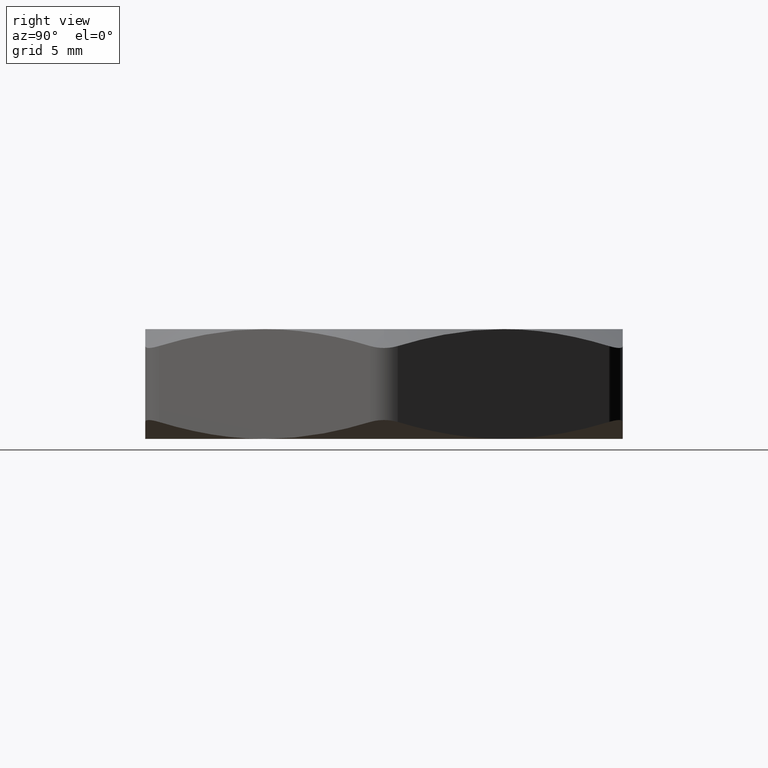
[diagram: clean part render]
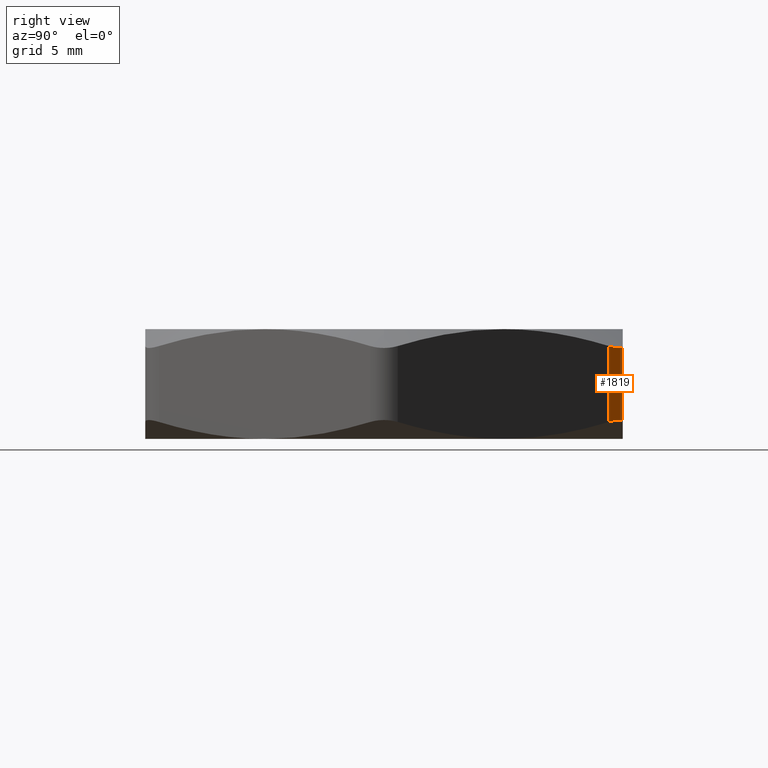
[diagram: same view with one face highlighted and labeled with its STEP entity id]
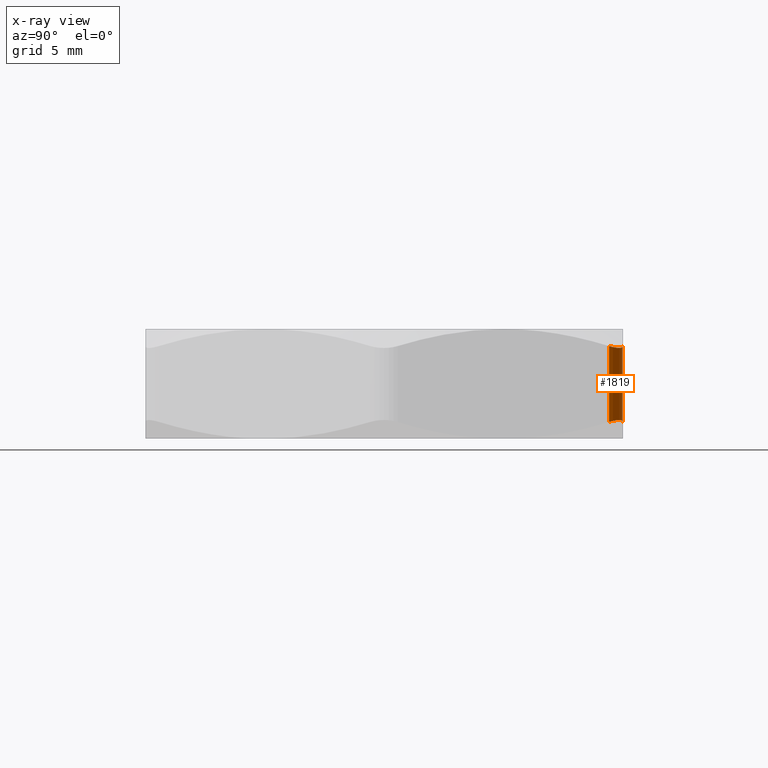
[diagram: x-ray of the same camera — body ghosted, the highlighted face saturated]
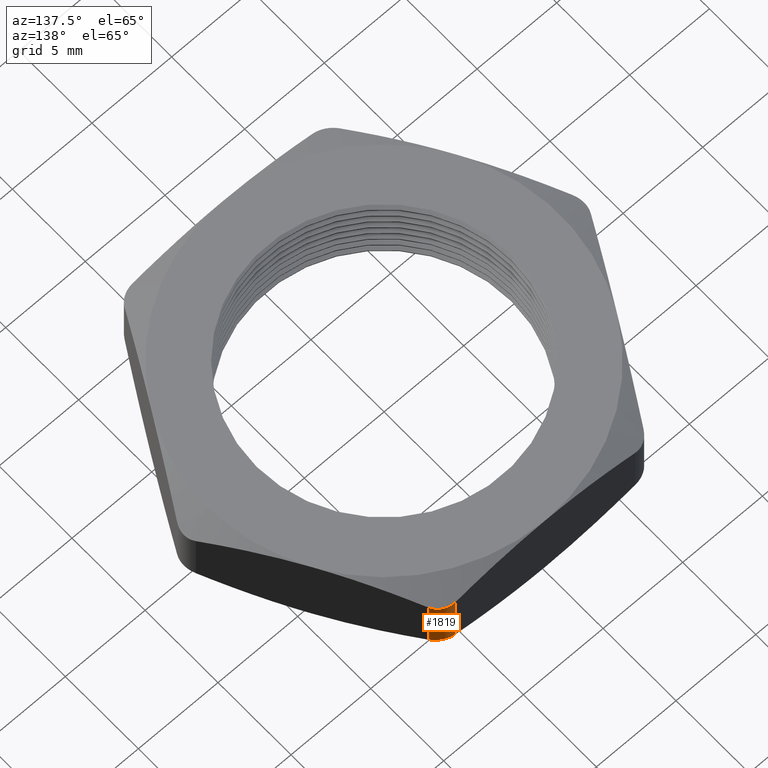
[diagram: same view with one face highlighted and labeled with its STEP entity id]
A machine part, right view. The second image highlights one B-rep face of the part: STEP entity #1819.
The next image is the same camera in x-ray: the body ghosted, the highlighted face saturated — about 0% of this face is hidden behind the body in this view.
A second angle (auxiliary view) of the same face is appended — the face is thin or edge-on in the first view.
In plain terms, the highlighted cylindrical surface (edge-blend (fillet) strip) has radius 1.27 mm, axis along (0, 0, -1).
Its self-contained STEP definition (entity closure, byte-faithful):
#59 = CARTESIAN_POINT ( 'NONE',  ( 0.2655811238272280900, 0.4100000000000000900, 0.1691111204119870300 ) ) ;
#60 = DIRECTION ( 'NONE',  ( 0.0000000000000000000, 0.0000000000000000000, 1.000000000000000000 ) ) ;
#61 = VECTOR ( 'NONE', #60, 39.37007874015748100 ) ;
#62 = CARTESIAN_POINT ( 'NONE',  ( 0.2655811238272280900, 0.4100000000000000900, 0.2000000000000000100 ) ) ;
#63 = LINE ( 'NONE', #62, #61 ) ;
#77 = B_SPLINE_CURVE_WITH_KNOTS ( 'NONE', 3,
 ( #107, #94, #93, #92, #91, #139, #138, #137, #136, #135 ),
 .UNSPECIFIED., .F., .F.,
 ( 4, 2, 2, 2, 4 ),
 ( 1.939479807224432100E-018, 0.0003345381006702025400, 0.0006690762013404031200, 0.001003614302010603700, 0.001338152402680804300 ),
 .UNSPECIFIED. ) ;
#91 = CARTESIAN_POINT ( 'NONE',  ( 0.2511235597171417900, 0.4260777074943110100, 0.1656151636324163500 ) ) ;
#92 = CARTESIAN_POINT ( 'NONE',  ( 0.2546428228077096700, 0.4233644132453336900, 0.1659209830829221900 ) ) ;
#93 = CARTESIAN_POINT ( 'NONE',  ( 0.2608209857074347800, 0.4171523112068913900, 0.1671136166764754500 ) ) ;
#94 = CARTESIAN_POINT ( 'NONE',  ( 0.2634293512249381600, 0.4137269794735008400, 0.1679805430371039700 ) ) ;
#107 = CARTESIAN_POINT ( 'NONE',  ( 0.2655811238272280900, 0.4100000000000000900, 0.1691111204119870300 ) ) ;
#135 = CARTESIAN_POINT ( 'NONE',  ( 0.2222798536380062900, 0.4350000000000000500, 0.1691111204119868900 ) ) ;
#136 = CARTESIAN_POINT ( 'NONE',  ( 0.2265847453933615100, 0.4350000000000002800, 0.1679801892869355300 ) ) ;
#137 = CARTESIAN_POINT ( 'NONE',  ( 0.2309501607717504000, 0.4344345798341482400, 0.1670972121791100800 ) ) ;
#138 = CARTESIAN_POINT ( 'NONE',  ( 0.2393632267801656100, 0.4321922691895396800, 0.1659182179950457500 ) ) ;
#139 = CARTESIAN_POINT ( 'NONE',  ( 0.2435107721109948100, 0.4304817054887020700, 0.1656112295872508000 ) ) ;
#292 = DIRECTION ( 'NONE',  ( -1.000000000000000000, 0.0000000000000000000, 0.0000000000000000000 ) ) ;
#293 = DIRECTION ( 'NONE',  ( 0.0000000000000000000, 0.0000000000000000000, -1.000000000000000000 ) ) ;
#294 = CARTESIAN_POINT ( 'NONE',  ( 0.2222798536380062600, 0.3850000000000000600, 0.2000000000000000100 ) ) ;
#295 = AXIS2_PLACEMENT_3D ( 'NONE', #294, #293, #292 ) ;
#297 = CYLINDRICAL_SURFACE ( 'NONE', #295, 0.05000000000000001000 ) ;
#300 = FACE_OUTER_BOUND ( 'NONE', #1820, .T. ) ;
#301 = CARTESIAN_POINT ( 'NONE',  ( 0.2655811238272201000, 0.4100000000000139100, 0.03088887958801707400 ) ) ;
#302 = CARTESIAN_POINT ( 'NONE',  ( 0.2634286779495386700, 0.4137281456206972100, 0.03201981071306909300 ) ) ;
#303 = CARTESIAN_POINT ( 'NONE',  ( 0.2607563020329075600, 0.4172259961535204600, 0.03290278782089232200 ) ) ;
#304 = CARTESIAN_POINT ( 'NONE',  ( 0.2546078710472930400, 0.4233907697182155400, 0.03408178200495524900 ) ) ;
#305 = CARTESIAN_POINT ( 'NONE',  ( 0.2510527067621622900, 0.4261273674876410200, 0.03438877041274965300 ) ) ;
#306 = CARTESIAN_POINT ( 'NONE',  ( 0.2434323388177319900, 0.4305182359509812700, 0.03438483636758332000 ) ) ;
#307 = CARTESIAN_POINT ( 'NONE',  ( 0.2393229255248923700, 0.4322093600655245200, 0.03407901691707723000 ) ) ;
#308 = CARTESIAN_POINT ( 'NONE',  ( 0.2308540058988403600, 0.4344537550661822800, 0.03288638332352410200 ) ) ;
#309 = CARTESIAN_POINT ( 'NONE',  ( 0.2265833988425847200, 0.4349999999999999400, 0.03201945696289566100 ) ) ;
#310 = CARTESIAN_POINT ( 'NONE',  ( 0.2222798536380062900, 0.4350000000000000500, 0.03088887958801311500 ) ) ;
#313 = B_SPLINE_CURVE_WITH_KNOTS ( 'NONE', 3,
 ( #310, #309, #308, #307, #306, #305, #304, #303, #302, #301 ),
 .UNSPECIFIED., .F., .F.,
 ( 4, 2, 2, 2, 4 ),
 ( 8.741117365843378200E-019, 0.0003345381006700975800, 0.0006690762013401943000, 0.001003614302010291000, 0.001338152402680387700 ),
 .UNSPECIFIED. ) ;
#594 = CARTESIAN_POINT ( 'NONE',  ( 0.2655811238272201000, 0.4100000000000139100, 0.03088887958801707400 ) ) ;
#1076 = VECTOR ( 'NONE', #1083, 39.37007874015748100 ) ;
#1077 = CARTESIAN_POINT ( 'NONE',  ( 0.2222798536380062600, 0.4350000000000000500, 0.2000000000000000100 ) ) ;
#1078 = LINE ( 'NONE', #1077, #1076 ) ;
#1082 = CARTESIAN_POINT ( 'NONE',  ( 0.2222798536380062900, 0.4350000000000000500, 0.03088887958801311500 ) ) ;
#1083 = DIRECTION ( 'NONE',  ( 0.0000000000000000000, 0.0000000000000000000, -1.000000000000000000 ) ) ;
#1118 = CARTESIAN_POINT ( 'NONE',  ( 0.2222798536380062900, 0.4350000000000000500, 0.1691111204119868900 ) ) ;
#1609 = VERTEX_POINT ( 'NONE', #1118 ) ;
#1611 = EDGE_CURVE ( 'NONE', #1609, #1612, #1078, .T. ) ;
#1612 = VERTEX_POINT ( 'NONE', #1082 ) ;
#1694 = VERTEX_POINT ( 'NONE', #594 ) ;
#1731 = EDGE_CURVE ( 'NONE', #1758, #1609, #77, .T. ) ;
#1757 = EDGE_CURVE ( 'NONE', #1694, #1758, #63, .T. ) ;
#1758 = VERTEX_POINT ( 'NONE', #59 ) ;
#1801 = EDGE_CURVE ( 'NONE', #1612, #1694, #313, .T. ) ;
#1819 = ADVANCED_FACE ( 'NONE', ( #300 ), #297, .T. ) ;
#1820 = EDGE_LOOP ( 'NONE', ( #1879, #2050, #2051, #1884 ) ) ;
#1879 = ORIENTED_EDGE ( 'NONE', *, *, #1731, .F. ) ;
#1884 = ORIENTED_EDGE ( 'NONE', *, *, #1611, .F. ) ;
#2050 = ORIENTED_EDGE ( 'NONE', *, *, #1757, .F. ) ;
#2051 = ORIENTED_EDGE ( 'NONE', *, *, #1801, .F. ) ;